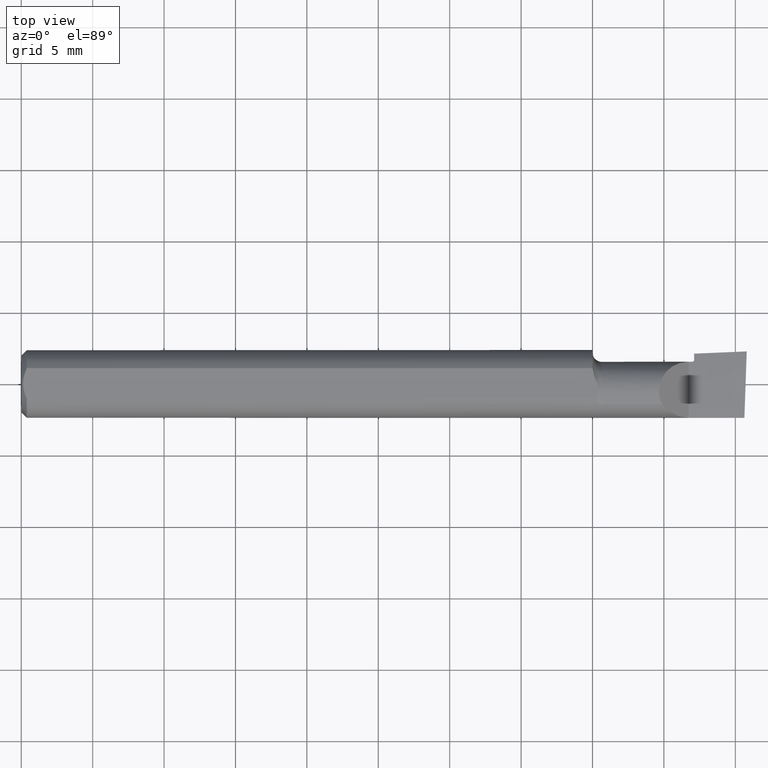
[diagram: clean part render]
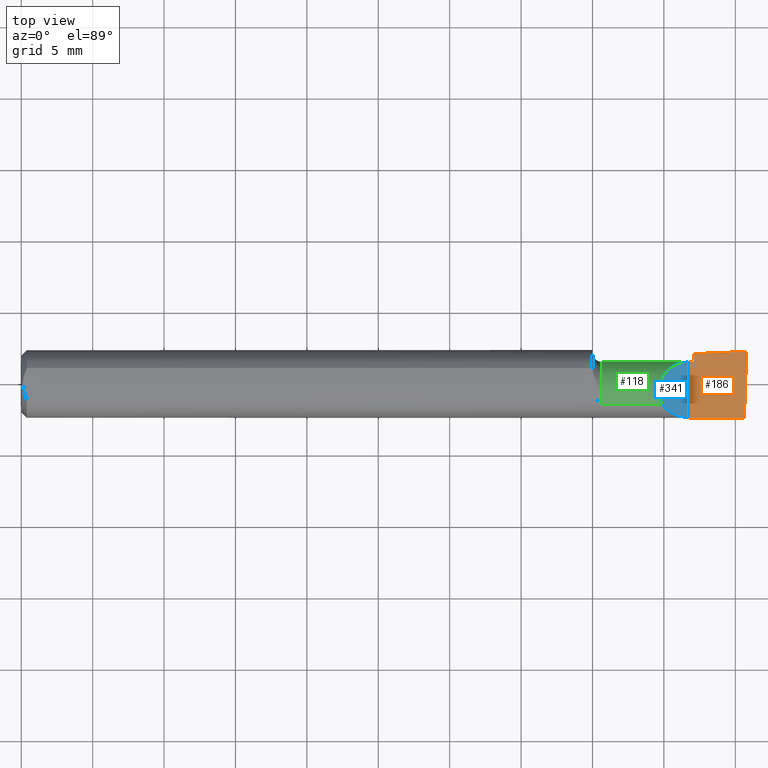
[diagram: same view with three faces highlighted in distinct colors, each labeled with its STEP entity id]
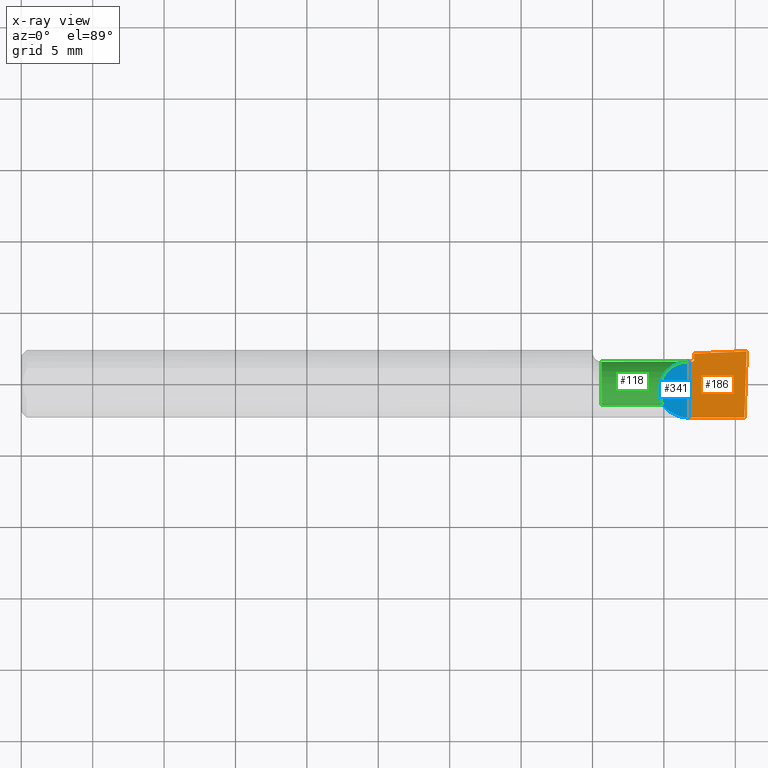
[diagram: x-ray of the same camera — body ghosted, the three highlighted faces saturated]
A machine part, top view with three faces highlighted in distinct colors.
The next image is the same camera in x-ray (body ghosted, the three faces saturated) — at least one of them is partly hidden behind the body in this view.
Their STEP definitions:

[orange] entity #186 — the highlighted planar face has unit normal (-0, 0, -1).
#29 = ORIENTED_EDGE ( 'NONE', *, *, #337, .F. ) ;
#30 = VECTOR ( 'NONE', #187, 39.37007874015748854 ) ;
#42 = FACE_OUTER_BOUND ( 'NONE', #119, .T. ) ;
#44 = CARTESIAN_POINT ( 'NONE',  ( 1.840000000000000080, -0.09359999999999998876, -1.868634782302818344E-17 ) ) ;
#47 = LINE ( 'NONE', #476, #114 ) ;
#51 = ORIENTED_EDGE ( 'NONE', *, *, #565, .T. ) ;
#82 = CARTESIAN_POINT ( 'NONE',  ( 1.840000000000000080, 0.09359999999999998876, -1.868634782302818344E-17 ) ) ;
#86 = DIRECTION ( 'NONE',  ( 0.000000000000000000, 0.000000000000000000, 1.000000000000000000 ) ) ;
#91 = PLANE ( 'NONE',  #201 ) ;
#94 = CARTESIAN_POINT ( 'NONE',  ( 1.857912095033705357, 0.08369557080627151868, -1.868634782302818344E-17 ) ) ;
#100 = CARTESIAN_POINT ( 'NONE',  ( 2.000000000000000444, 0.08978918869558996652, 4.097771990496394828E-16 ) ) ;
#104 = CARTESIAN_POINT ( 'NONE',  ( 1.906245324762311455, 0.08577087285469074673, -1.868634782302818344E-17 ) ) ;
#107 = CARTESIAN_POINT ( 'NONE',  ( 1.999939969396823392, 0.08805703149137224239, -1.868634782302818344E-17 ) ) ;
#108 = VERTEX_POINT ( 'NONE', #451 ) ;
#114 = VECTOR ( 'NONE', #486, 39.37007874015748143 ) ;
#119 = EDGE_LOOP ( 'NONE', ( #51, #347, #29, #173, #533, #388, #156 ) ) ;
#140 = EDGE_CURVE ( 'NONE', #371, #616, #316, .T. ) ;
#152 = CARTESIAN_POINT ( 'NONE',  ( 1.993644362309209273, -0.09359999999999998876, -1.868634782302818344E-17 ) ) ;
#156 = ORIENTED_EDGE ( 'NONE', *, *, #140, .F. ) ;
#165 = LINE ( 'NONE', #346, #310 ) ;
#173 = ORIENTED_EDGE ( 'NONE', *, *, #254, .F. ) ;
#175 = DIRECTION ( 'NONE',  ( -0.000000000000000000, 1.000000000000000000, -0.000000000000000000 ) ) ;
#178 = LINE ( 'NONE', #419, #438 ) ;
#186 = ADVANCED_FACE ( 'NONE', ( #42 ), #91, .F. ) ;
#187 = DIRECTION ( 'NONE',  ( 0.03463576215158526567, 0.9994000019912840926, 0.000000000000000000 ) ) ;
#198 = CARTESIAN_POINT ( 'NONE',  ( 1.849999999999999867, 0.06139999999999991298, -1.868634782302817419E-17 ) ) ;
#201 = AXIS2_PLACEMENT_3D ( 'NONE', #317, #321, #614 ) ;
#203 = EDGE_CURVE ( 'NONE', #403, #108, #484, .T. ) ;
#224 = VECTOR ( 'NONE', #175, 39.37007874015748143 ) ;
#236 = AXIS2_PLACEMENT_3D ( 'NONE', #515, #86, #456 ) ;
#246 = CARTESIAN_POINT ( 'NONE',  ( 1.854999999999999760, 0.08357052569068625092, -1.707404996040164512E-17 ) ) ;
#254 = EDGE_CURVE ( 'NONE', #108, #291, #178, .T. ) ;
#268 = DIRECTION ( 'NONE',  ( 1.000000000000000000, -0.000000000000000000, -0.000000000000000000 ) ) ;
#291 = VERTEX_POINT ( 'NONE', #246 ) ;
#310 = VECTOR ( 'NONE', #268, 39.37007874015748143 ) ;
#316 = LINE ( 'NONE', #82, #224 ) ;
#317 = CARTESIAN_POINT ( 'NONE',  ( 1.840000000000000080, 0.09359999999999998876, -1.868634782302818344E-17 ) ) ;
#321 = DIRECTION ( 'NONE',  ( -0.000000000000000000, 0.000000000000000000, -1.000000000000000000 ) ) ;
#337 = EDGE_CURVE ( 'NONE', #291, #354, #470, .T. ) ;
#342 = LINE ( 'NONE', #107, #30 ) ;
#346 = CARTESIAN_POINT ( 'NONE',  ( 1.840000000000000080, -0.09359999999999998876, -1.868634782302818344E-17 ) ) ;
#347 = ORIENTED_EDGE ( 'NONE', *, *, #408, .T. ) ;
#354 = VERTEX_POINT ( 'NONE', #100 ) ;
#359 = EDGE_CURVE ( 'NONE', #616, #403, #47, .T. ) ;
#371 = VERTEX_POINT ( 'NONE', #44 ) ;
#388 = ORIENTED_EDGE ( 'NONE', *, *, #359, .F. ) ;
#403 = VERTEX_POINT ( 'NONE', #198 ) ;
#407 = VERTEX_POINT ( 'NONE', #152 ) ;
#408 = EDGE_CURVE ( 'NONE', #407, #354, #342, .T. ) ;
#419 = CARTESIAN_POINT ( 'NONE',  ( 1.854999999999999760, 0.09359999999999998876, -1.868634782302818344E-17 ) ) ;
#430 = CARTESIAN_POINT ( 'NONE',  ( 2.000000000000000444, 0.08978918869558996652, 4.097771990496394828E-16 ) ) ;
#432 = CARTESIAN_POINT ( 'NONE',  ( 1.859368142709067584, 0.08375808967248928039, -1.868634782302818344E-17 ) ) ;
#438 = VECTOR ( 'NONE', #520, 39.37007874015748143 ) ;
#451 = CARTESIAN_POINT ( 'NONE',  ( 1.854999999999999760, 0.06639999999999990354, 0.000000000000000000 ) ) ;
#456 = DIRECTION ( 'NONE',  ( -1.000000000000000000, 0.000000000000000000, 0.000000000000000000 ) ) ;
#470 = B_SPLINE_CURVE_WITH_KNOTS ( 'NONE', 3,
 ( #571, #532, #94, #432, #104, #488, #430 ),
 .UNSPECIFIED., .F., .F.,
 ( 4, 3, 4 ),
 ( 0.005501299597334763543, 0.005612352658126768500, 0.009187685148801891938 ),
 .UNSPECIFIED. ) ;
#476 = CARTESIAN_POINT ( 'NONE',  ( 3.517254291842737842E-19, 0.06139999999999997543, -1.868634782302818344E-17 ) ) ;
#484 = CIRCLE ( 'NONE', #236, 0.004999999999999810152 ) ;
#486 = DIRECTION ( 'NONE',  ( 1.000000000000000000, -4.268512490100411279E-18, 0.000000000000000000 ) ) ;
#488 = CARTESIAN_POINT ( 'NONE',  ( 1.953122615924094641, 0.08778111608944104416, -1.868634782302818344E-17 ) ) ;
#515 = CARTESIAN_POINT ( 'NONE',  ( 1.849999999999999867, 0.06639999999999991742, 0.000000000000000000 ) ) ;
#520 = DIRECTION ( 'NONE',  ( 4.268512490100411279E-18, 1.000000000000000000, 0.000000000000000000 ) ) ;
#532 = CARTESIAN_POINT ( 'NONE',  ( 1.856456047463834969, 0.08363304948311850451, -1.868634782302818344E-17 ) ) ;
#533 = ORIENTED_EDGE ( 'NONE', *, *, #203, .F. ) ;
#565 = EDGE_CURVE ( 'NONE', #371, #407, #165, .T. ) ;
#571 = CARTESIAN_POINT ( 'NONE',  ( 1.854999999999999760, 0.08357052569068625092, -1.707404996040164512E-17 ) ) ;
#613 = CARTESIAN_POINT ( 'NONE',  ( 1.840000000000000080, 0.06139999999999996849, -1.868634782302818344E-17 ) ) ;
#614 = DIRECTION ( 'NONE',  ( -1.000000000000000000, 0.000000000000000000, 0.000000000000000000 ) ) ;
#616 = VERTEX_POINT ( 'NONE', #613 ) ;

[blue] entity #341 — the highlighted planar face has unit normal (-0.7071, 0, -0.7071).
#2 = CARTESIAN_POINT ( 'NONE',  ( 1.784610455782699834, -0.08049145269555538218, 0.05598954421729967351 ) ) ;
#6 = CARTESIAN_POINT ( 'NONE',  ( 1.810798836011073609, -0.09341088610867002984, 0.02980116398892594665 ) ) ;
#27 = CARTESIAN_POINT ( 'NONE',  ( 1.766692136939143953, -0.05743333333333389135, 0.07390786306085547763 ) ) ;
#37 = CARTESIAN_POINT ( 'NONE',  ( 1.840000000000000080, 0.06139781550502415586, 0.0005999999999995612792 ) ) ;
#102 =( BOUNDED_CURVE ( )  B_SPLINE_CURVE ( 3, ( #288, #6, #2, #243 ),
 .UNSPECIFIED., .F., .T. ) 
 B_SPLINE_CURVE_WITH_KNOTS ( ( 4, 4 ),
 ( 4.718799280696806875, 5.622568524807391555 ),
 .UNSPECIFIED. ) 
 CURVE ( )  GEOMETRIC_REPRESENTATION_ITEM ( )  RATIONAL_B_SPLINE_CURVE ( ( 1.000000000000000000, 0.9330838387302625714, 0.9330838387302625714, 1.000000000000000000 ) ) 
 REPRESENTATION_ITEM ( '' )  );
#130 = CARTESIAN_POINT ( 'NONE',  ( 1.772303341926772635, 0.06090486560586779591, 0.06829665807322723992 ) ) ;
#142 = AXIS2_PLACEMENT_3D ( 'NONE', #192, #387, #295 ) ;
#158 = ORIENTED_EDGE ( 'NONE', *, *, #584, .T. ) ;
#159 =( BOUNDED_CURVE ( )  B_SPLINE_CURVE ( 3, ( #37, #130, #271, #27 ),
 .UNSPECIFIED., .F., .F. ) 
 B_SPLINE_CURVE_WITH_KNOTS ( ( 4, 4 ),
 ( 4.719670598130175421, 6.741181949416954922 ),
 .UNSPECIFIED. ) 
 CURVE ( )  GEOMETRIC_REPRESENTATION_ITEM ( )  RATIONAL_B_SPLINE_CURVE ( ( 1.000000000000000000, 0.6874804262519065290, 0.6874804262519065290, 1.000000000000000000 ) ) 
 REPRESENTATION_ITEM ( '' )  );
#192 = CARTESIAN_POINT ( 'NONE',  ( 1.756999999999999673, 0.04793338999999999933, 0.08360000000000000764 ) ) ;
#221 = VERTEX_POINT ( 'NONE', #367 ) ;
#228 = DIRECTION ( 'NONE',  ( 0.000000000000000000, -1.000000000000000000, 0.000000000000000000 ) ) ;
#231 = CARTESIAN_POINT ( 'NONE',  ( 1.840000000000000080, 0.09359999999999998876, 0.0005999999999995612792 ) ) ;
#235 = EDGE_CURVE ( 'NONE', #277, #221, #570, .T. ) ;
#243 = CARTESIAN_POINT ( 'NONE',  ( 1.766692136939143953, -0.05743333333333389135, 0.07390786306085547763 ) ) ;
#271 = CARTESIAN_POINT ( 'NONE',  ( 1.736759123618126788, 0.003288122737896577701, 0.1038408763818731151 ) ) ;
#277 = VERTEX_POINT ( 'NONE', #557 ) ;
#288 = CARTESIAN_POINT ( 'NONE',  ( 1.840000000000000080, -0.09359807690332104524, 0.0005999999999995612792 ) ) ;
#295 = DIRECTION ( 'NONE',  ( -0.7071067811865474617, 0.000000000000000000, 0.7071067811865474617 ) ) ;
#333 = ORIENTED_EDGE ( 'NONE', *, *, #235, .F. ) ;
#341 = ADVANCED_FACE ( 'NONE', ( #535 ), #525, .F. ) ;
#357 = EDGE_CURVE ( 'NONE', #221, #431, #102, .T. ) ;
#367 = CARTESIAN_POINT ( 'NONE',  ( 1.840000000000000080, -0.09359807690332104524, 0.0005999999999995612792 ) ) ;
#387 = DIRECTION ( 'NONE',  ( -0.7071067811865475727, 0.000000000000000000, -0.7071067811865475727 ) ) ;
#412 = VECTOR ( 'NONE', #228, 39.37007874015748143 ) ;
#414 = EDGE_LOOP ( 'NONE', ( #333, #158, #536 ) ) ;
#431 = VERTEX_POINT ( 'NONE', #549 ) ;
#525 = PLANE ( 'NONE',  #142 ) ;
#535 = FACE_OUTER_BOUND ( 'NONE', #414, .T. ) ;
#536 = ORIENTED_EDGE ( 'NONE', *, *, #357, .F. ) ;
#549 = CARTESIAN_POINT ( 'NONE',  ( 1.766692136939143953, -0.05743333333333389135, 0.07390786306085547763 ) ) ;
#557 = CARTESIAN_POINT ( 'NONE',  ( 1.840000000000000080, 0.06139781550502415586, 0.0005999999999995612792 ) ) ;
#570 = LINE ( 'NONE', #231, #412 ) ;
#584 = EDGE_CURVE ( 'NONE', #277, #431, #159, .T. ) ;

[green] entity #118 — the highlighted cylindrical surface (edge-blend (fillet) strip) has radius 2.093 mm, axis along (-1, 0, -0).
#7 = ORIENTED_EDGE ( 'NONE', *, *, #52, .F. ) ;
#9 = CARTESIAN_POINT ( 'NONE',  ( 1.599999999999999867, -0.02100000000000000477, 0.000000000000000000 ) ) ;
#11 = CIRCLE ( 'NONE', #340, 0.08239999999999997327 ) ;
#12 = VECTOR ( 'NONE', #511, 39.37007874015748143 ) ;
#14 = DIRECTION ( 'NONE',  ( -1.000000000000000000, -0.000000000000000000, -0.000000000000000000 ) ) ;
#16 = CARTESIAN_POINT ( 'NONE',  ( 1.985817582123950320, -0.05743333333333348889, -0.07390786306085575519 ) ) ;
#18 = DIRECTION ( 'NONE',  ( 0.000000000000000000, 0.000000000000000000, 1.000000000000000000 ) ) ;
#21 = DIRECTION ( 'NONE',  ( 0.000000000000000000, -1.000000000000000000, 0.000000000000000000 ) ) ;
#23 = EDGE_CURVE ( 'NONE', #253, #431, #301, .T. ) ;
#26 = EDGE_CURVE ( 'NONE', #403, #426, #460, .T. ) ;
#27 = CARTESIAN_POINT ( 'NONE',  ( 1.766692136939143953, -0.05743333333333389135, 0.07390786306085547763 ) ) ;
#37 = CARTESIAN_POINT ( 'NONE',  ( 1.840000000000000080, 0.06139781550502415586, 0.0005999999999995612792 ) ) ;
#47 = LINE ( 'NONE', #476, #114 ) ;
#52 = EDGE_CURVE ( 'NONE', #448, #343, #501, .T. ) ;
#64 = CARTESIAN_POINT ( 'NONE',  ( 1.724999999999999867, -0.05743333333333348889, 0.07390786306085575519 ) ) ;
#71 = ORIENTED_EDGE ( 'NONE', *, *, #615, .F. ) ;
#74 = CARTESIAN_POINT ( 'NONE',  ( 0.000000000000000000, -0.02099999999999999437, 0.000000000000000000 ) ) ;
#88 = LINE ( 'NONE', #135, #12 ) ;
#96 = EDGE_CURVE ( 'NONE', #277, #616, #11, .T. ) ;
#101 = ORIENTED_EDGE ( 'NONE', *, *, #497, .F. ) ;
#114 = VECTOR ( 'NONE', #486, 39.37007874015748143 ) ;
#118 = ADVANCED_FACE ( 'NONE', ( #358 ), #453, .T. ) ;
#130 = CARTESIAN_POINT ( 'NONE',  ( 1.772303341926772635, 0.06090486560586779591, 0.06829665807322723992 ) ) ;
#135 = CARTESIAN_POINT ( 'NONE',  ( 2.000000000000000000, -0.01381836679759350546, -0.08208644312275988064 ) ) ;
#139 = CARTESIAN_POINT ( 'NONE',  ( 1.724999999999999867, -0.05743333333333348889, -0.07390786306085575519 ) ) ;
#159 =( BOUNDED_CURVE ( )  B_SPLINE_CURVE ( 3, ( #37, #130, #271, #27 ),
 .UNSPECIFIED., .F., .F. ) 
 B_SPLINE_CURVE_WITH_KNOTS ( ( 4, 4 ),
 ( 4.719670598130175421, 6.741181949416954922 ),
 .UNSPECIFIED. ) 
 CURVE ( )  GEOMETRIC_REPRESENTATION_ITEM ( )  RATIONAL_B_SPLINE_CURVE ( ( 1.000000000000000000, 0.6874804262519065290, 0.6874804262519065290, 1.000000000000000000 ) ) 
 REPRESENTATION_ITEM ( '' )  );
#163 = AXIS2_PLACEMENT_3D ( 'NONE', #9, #494, #21 ) ;
#166 = DIRECTION ( 'NONE',  ( -1.000000000000000000, 4.268512490100411279E-18, -0.000000000000000000 ) ) ;
#170 = ORIENTED_EDGE ( 'NONE', *, *, #96, .T. ) ;
#181 = VECTOR ( 'NONE', #259, 39.37007874015748143 ) ;
#198 = CARTESIAN_POINT ( 'NONE',  ( 1.849999999999999867, 0.06139999999999991298, -1.868634782302817419E-17 ) ) ;
#212 = DIRECTION ( 'NONE',  ( -4.268512490100411279E-18, -1.000000000000000000, 0.000000000000000000 ) ) ;
#225 = VERTEX_POINT ( 'NONE', #512 ) ;
#240 = CARTESIAN_POINT ( 'NONE',  ( 1.849999999999999867, -0.01381836679759353669, -0.08208644312275979738 ) ) ;
#250 = ORIENTED_EDGE ( 'NONE', *, *, #26, .T. ) ;
#253 = VERTEX_POINT ( 'NONE', #324 ) ;
#259 = DIRECTION ( 'NONE',  ( 1.000000000000000000, -4.268512490100411279E-18, 0.000000000000000000 ) ) ;
#262 = CARTESIAN_POINT ( 'NONE',  ( 1.985638364069035822, -0.02892578711483820980, -0.08340817113563987750 ) ) ;
#270 = ORIENTED_EDGE ( 'NONE', *, *, #424, .T. ) ;
#271 = CARTESIAN_POINT ( 'NONE',  ( 1.736759123618126788, 0.003288122737896577701, 0.1038408763818731151 ) ) ;
#277 = VERTEX_POINT ( 'NONE', #557 ) ;
#301 = LINE ( 'NONE', #64, #181 ) ;
#324 = CARTESIAN_POINT ( 'NONE',  ( 1.599999999999999867, -0.05743333333333334317, 0.07390786306085586621 ) ) ;
#325 = DIRECTION ( 'NONE',  ( -1.000000000000000000, 4.268512490100411279E-18, -0.000000000000000000 ) ) ;
#327 = AXIS2_PLACEMENT_3D ( 'NONE', #400, #166, #546 ) ;
#340 = AXIS2_PLACEMENT_3D ( 'NONE', #406, #14, #18 ) ;
#343 = VERTEX_POINT ( 'NONE', #573 ) ;
#358 = FACE_OUTER_BOUND ( 'NONE', #561, .T. ) ;
#359 = EDGE_CURVE ( 'NONE', #616, #403, #47, .T. ) ;
#365 = CIRCLE ( 'NONE', #163, 0.08240000000000001490 ) ;
#376 = LINE ( 'NONE', #139, #622 ) ;
#400 = CARTESIAN_POINT ( 'NONE',  ( 1.849999999999999867, -0.02100000000000000477, 0.000000000000000000 ) ) ;
#403 = VERTEX_POINT ( 'NONE', #198 ) ;
#405 = CARTESIAN_POINT ( 'NONE',  ( 1.985817582123950320, -0.05743333333333348889, -0.07390786306085575519 ) ) ;
#406 = CARTESIAN_POINT ( 'NONE',  ( 1.840000000000000080, -0.02100000000000000477, 0.000000000000000000 ) ) ;
#424 = EDGE_CURVE ( 'NONE', #448, #225, #376, .T. ) ;
#426 = VERTEX_POINT ( 'NONE', #240 ) ;
#431 = VERTEX_POINT ( 'NONE', #549 ) ;
#437 = ORIENTED_EDGE ( 'NONE', *, *, #359, .T. ) ;
#448 = VERTEX_POINT ( 'NONE', #405 ) ;
#453 = CYLINDRICAL_SURFACE ( 'NONE', #472, 0.08239999999999997327 ) ;
#460 = CIRCLE ( 'NONE', #327, 0.08239999999999991775 ) ;
#472 = AXIS2_PLACEMENT_3D ( 'NONE', #74, #550, #212 ) ;
#476 = CARTESIAN_POINT ( 'NONE',  ( 3.517254291842737842E-19, 0.06139999999999997543, -1.868634782302818344E-17 ) ) ;
#486 = DIRECTION ( 'NONE',  ( 1.000000000000000000, -4.268512490100411279E-18, 0.000000000000000000 ) ) ;
#494 = DIRECTION ( 'NONE',  ( -1.000000000000000000, 4.268512490100411279E-18, -0.000000000000000000 ) ) ;
#497 = EDGE_CURVE ( 'NONE', #253, #225, #365, .T. ) ;
#500 = CARTESIAN_POINT ( 'NONE',  ( 1.985465187176707502, -0.04383112193845185856, -0.08061315639902377761 ) ) ;
#501 =( BOUNDED_CURVE ( )  B_SPLINE_CURVE ( 3, ( #16, #500, #262, #606 ),
 .UNSPECIFIED., .F., .T. ) 
 B_SPLINE_CURVE_WITH_KNOTS ( ( 4, 4 ),
 ( 6.100130346660554537, 6.645393451497628057 ),
 .UNSPECIFIED. ) 
 CURVE ( )  GEOMETRIC_REPRESENTATION_ITEM ( )  RATIONAL_B_SPLINE_CURVE ( ( 1.000000000000000000, 0.9753770948873836666, 0.9753770948873836666, 1.000000000000000000 ) ) 
 REPRESENTATION_ITEM ( '' )  );
#511 = DIRECTION ( 'NONE',  ( -1.000000000000000000, 0.000000000000000000, 0.000000000000000000 ) ) ;
#512 = CARTESIAN_POINT ( 'NONE',  ( 1.599999999999999867, -0.05743333333333335705, -0.07390786306085585233 ) ) ;
#546 = DIRECTION ( 'NONE',  ( 0.000000000000000000, -1.000000000000000000, 0.000000000000000000 ) ) ;
#549 = CARTESIAN_POINT ( 'NONE',  ( 1.766692136939143953, -0.05743333333333389135, 0.07390786306085547763 ) ) ;
#550 = DIRECTION ( 'NONE',  ( -1.000000000000000000, 4.268512490100411279E-18, -0.000000000000000000 ) ) ;
#557 = CARTESIAN_POINT ( 'NONE',  ( 1.840000000000000080, 0.06139781550502415586, 0.0005999999999995612792 ) ) ;
#558 = ORIENTED_EDGE ( 'NONE', *, *, #23, .T. ) ;
#561 = EDGE_LOOP ( 'NONE', ( #7, #270, #101, #558, #626, #170, #437, #250, #71 ) ) ;
#573 = CARTESIAN_POINT ( 'NONE',  ( 1.986324320446372305, -0.01381836679759350546, -0.08208644312275988064 ) ) ;
#584 = EDGE_CURVE ( 'NONE', #277, #431, #159, .T. ) ;
#606 = CARTESIAN_POINT ( 'NONE',  ( 1.986324320446372305, -0.01381836679759350546, -0.08208644312275988064 ) ) ;
#613 = CARTESIAN_POINT ( 'NONE',  ( 1.840000000000000080, 0.06139999999999996849, -1.868634782302818344E-17 ) ) ;
#615 = EDGE_CURVE ( 'NONE', #343, #426, #88, .T. ) ;
#616 = VERTEX_POINT ( 'NONE', #613 ) ;
#622 = VECTOR ( 'NONE', #325, 39.37007874015748143 ) ;
#626 = ORIENTED_EDGE ( 'NONE', *, *, #584, .F. ) ;